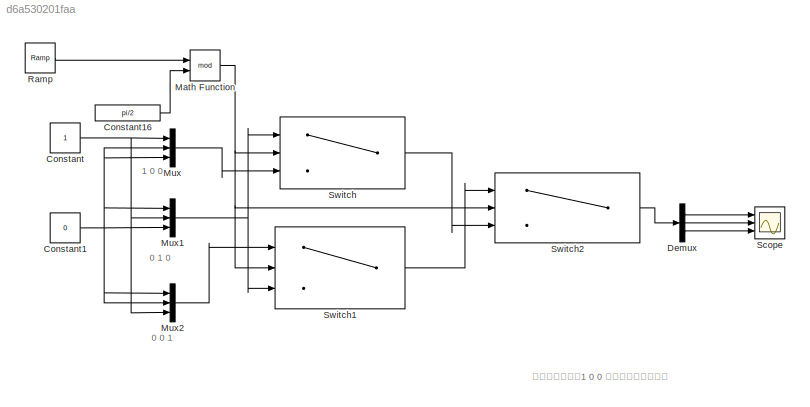
MODEL slx_d6a530201faa
KIND model
BLOCK [Constant] Constant
BLOCK [Constant] Constant1
  Value = 0
BLOCK [Constant] Constant16
  Value = pi/2
BLOCK [Demux] Demux
  DisplayOption = bar
  Outputs = 3
  Ports = [1, 3]
BLOCK [Math] Math Function
  Operator = mod
  Ports = [2, 1]
BLOCK [Mux] Mux
  DisplayOption = bar
  Inputs = 3
  Ports = [3, 1]
BLOCK [Mux] Mux1
  DisplayOption = bar
  Inputs = 3
  Ports = [3, 1]
BLOCK [Mux] Mux2
  DisplayOption = bar
  Inputs = 3
  Ports = [3, 1]
BLOCK [Reference] Ramp  REF=simulink/Sources/Ramp
  Ports = [0, 1]
  SourceBlock = simulink/Sources/Ramp
  SourceType = Ramp
  VectorParams1D = on
  X0 = 0
  slope = 1
  start = 0
BLOCK [Scope] Scope
  DataFormat = StructureWithTime
  Floating = off
  NumInputPorts = 3
  Ports = [3]
  SampleTime = 0
  ShowLegends = off
  YMax = 5~5~5
  YMin = -5~-5~-5
  ZoomMode = xonly
BLOCK [Switch] Switch
  InputSameDT = off
  SaturateOnIntegerOverflow = off
  Threshold = pi/6
BLOCK [Switch] Switch1
  InputSameDT = off
  SaturateOnIntegerOverflow = off
  Threshold = pi/3
BLOCK [Switch] Switch2
  InputSameDT = off
  SaturateOnIntegerOverflow = off
  Threshold = pi/3
ANNOTATION (root): 0 0 1
ANNOTATION (root): 0 1 0
ANNOTATION (root): 1 0 0
ANNOTATION (root): 根据转角，输出1 0 0 等，从而计算电感等
LINE Constant16:1 -> Math Function:2
NET Constant1:1 -> Mux1:1, Mux1:3, Mux2:1, Mux2:2, Mux:2, Mux:3
NET Constant:1 -> Mux1:2, Mux2:3, Mux:1
LINE Demux:1 -> Scope:1
LINE Demux:2 -> Scope:2
LINE Demux:3 -> Scope:3
NET Math Function:1 -> Switch1:2, Switch2:2, Switch:2
NET Mux1:1 -> Switch1:3, Switch:1
LINE Mux2:1 -> Switch1:1
LINE Mux:1 -> Switch:3
LINE Ramp:1 -> Math Function:1
LINE Switch1:1 -> Switch2:1
LINE Switch2:1 -> Demux:1
LINE Switch:1 -> Switch2:3
note: NET lines group one-source signal fan-out (src -> all destinations, sorted); 1:1 wires keep LINE
